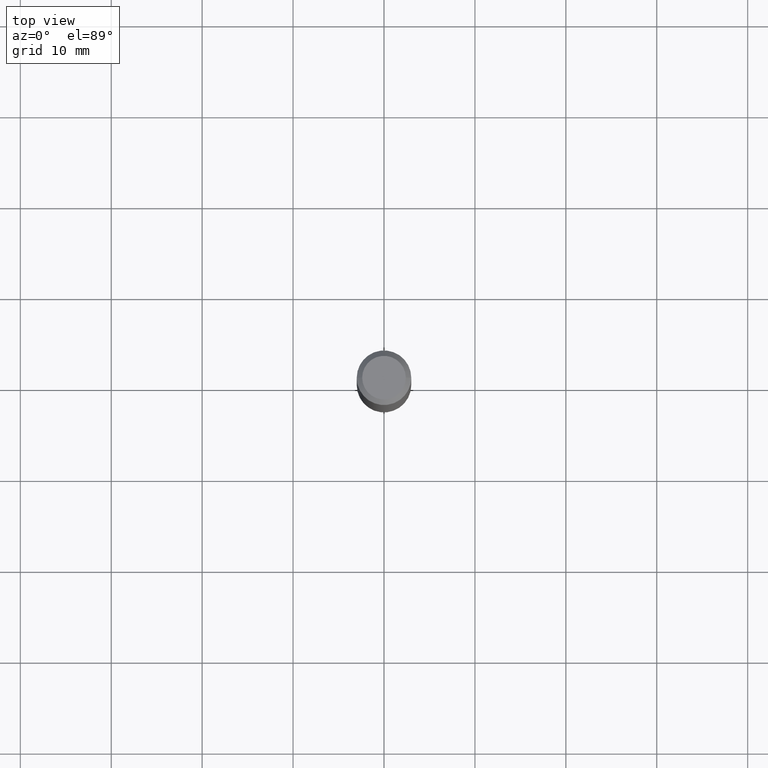
[diagram: clean part render]
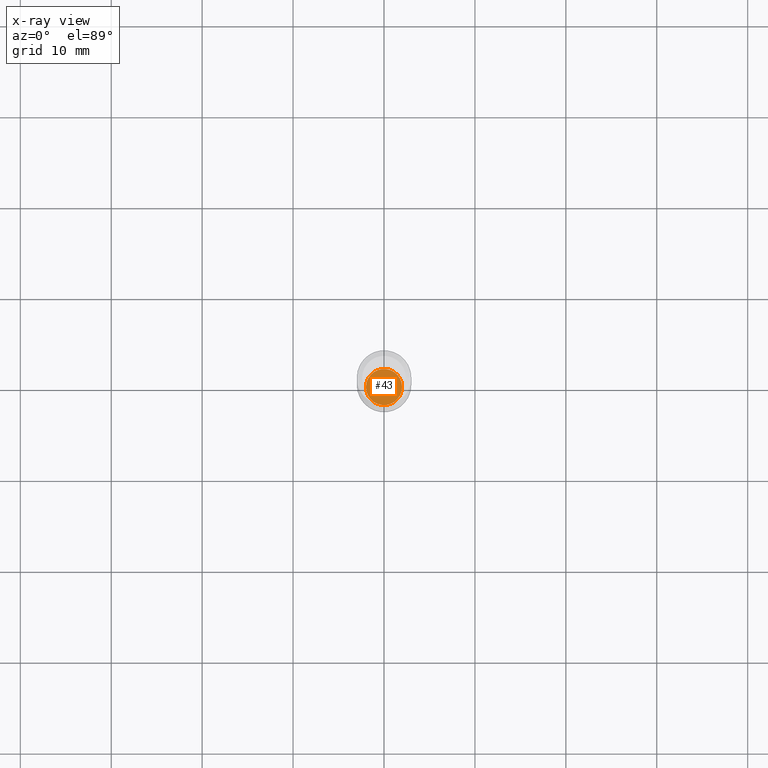
[diagram: x-ray — body ghosted, one internal face saturated and labeled with its STEP entity id]
A machine part, top view, then the same camera in x-ray: the body is ghosted and one INTERNAL B-rep face — a face not visible from any outside direction — is saturated and labeled: STEP entity #43.
In plain terms, the highlighted planar face has unit normal (-0, 0, 1).
Its self-contained STEP definition (entity closure, byte-faithful):
#11 = AXIS2_PLACEMENT_3D ( 'NONE', #437, #285, #401 ) ;
#19 = AXIS2_PLACEMENT_3D ( 'NONE', #299, #373, #144 ) ;
#21 = PLANE ( 'NONE',  #430 ) ;
#33 = EDGE_CURVE ( 'NONE', #172, #441, #357, .T. ) ;
#43 = ADVANCED_FACE ( 'NONE', ( #494 ), #21, .F. ) ;
#60 = DIRECTION ( 'NONE',  ( -2.438088387897960049E-29, 3.491481338843145188E-15, 1.000000000000000000 ) ) ;
#69 = CARTESIAN_POINT ( 'NONE',  ( 0.07825000000000000011, -8.753492864613649504E-15, -2.350600000000000467 ) ) ;
#133 = CARTESIAN_POINT ( 'NONE',  ( -0.07825000000000000011, -7.648427117178309273E-15, -2.350600000000000467 ) ) ;
#144 = DIRECTION ( 'NONE',  ( 1.000000000000000000, -6.982962677686267499E-15, 0.000000000000000000 ) ) ;
#150 = CIRCLE ( 'NONE', #11, 0.07825000000000000011 ) ;
#172 = VERTEX_POINT ( 'NONE', #69 ) ;
#263 = DIRECTION ( 'NONE',  ( 1.000000000000000000, -6.982962677686265922E-15, 4.876176775795935793E-29 ) ) ;
#285 = DIRECTION ( 'NONE',  ( -2.445468806185136597E-29, 3.491481338843145583E-15, 1.000000000000000000 ) ) ;
#299 = CARTESIAN_POINT ( 'NONE',  ( 5.748318975818783261E-29, -8.207076035084699166E-15, -2.350600000000000467 ) ) ;
#306 = CARTESIAN_POINT ( 'NONE',  ( 5.748318975818783261E-29, -8.207076035084699166E-15, -2.350600000000000467 ) ) ;
#316 = EDGE_CURVE ( 'NONE', #441, #172, #150, .T. ) ;
#353 = EDGE_LOOP ( 'NONE', ( #364, #412 ) ) ;
#357 = CIRCLE ( 'NONE', #19, 0.07825000000000000011 ) ;
#364 = ORIENTED_EDGE ( 'NONE', *, *, #33, .F. ) ;
#373 = DIRECTION ( 'NONE',  ( -2.445468806185136597E-29, 3.491481338843145583E-15, 1.000000000000000000 ) ) ;
#401 = DIRECTION ( 'NONE',  ( 1.000000000000000000, -6.982962677686267499E-15, 0.000000000000000000 ) ) ;
#412 = ORIENTED_EDGE ( 'NONE', *, *, #316, .F. ) ;
#430 = AXIS2_PLACEMENT_3D ( 'NONE', #306, #60, #263 ) ;
#437 = CARTESIAN_POINT ( 'NONE',  ( 5.748318975818783261E-29, -8.207076035084699166E-15, -2.350600000000000467 ) ) ;
#441 = VERTEX_POINT ( 'NONE', #133 ) ;
#494 = FACE_OUTER_BOUND ( 'NONE', #353, .T. ) ;